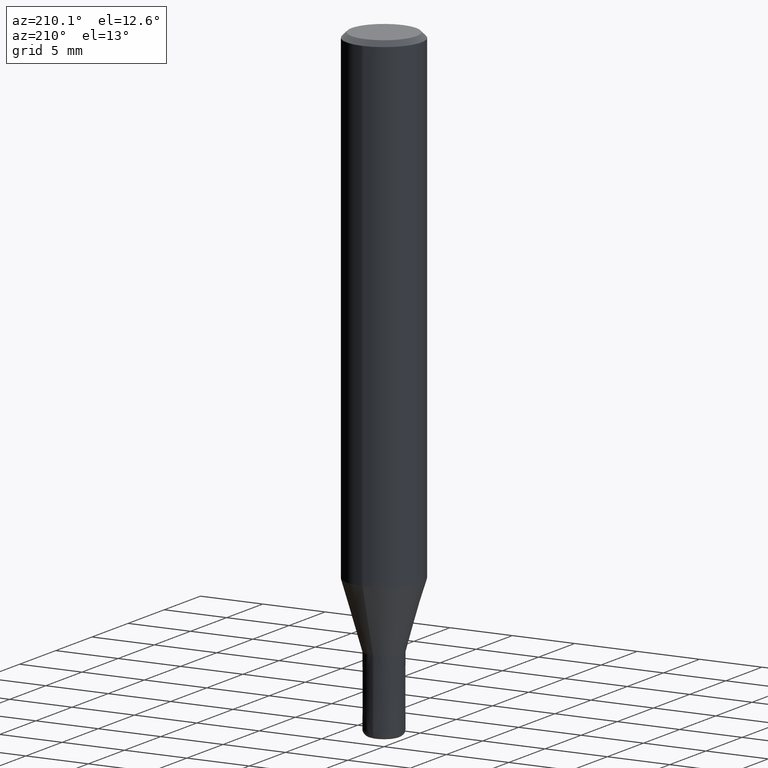
[diagram: clean part render]
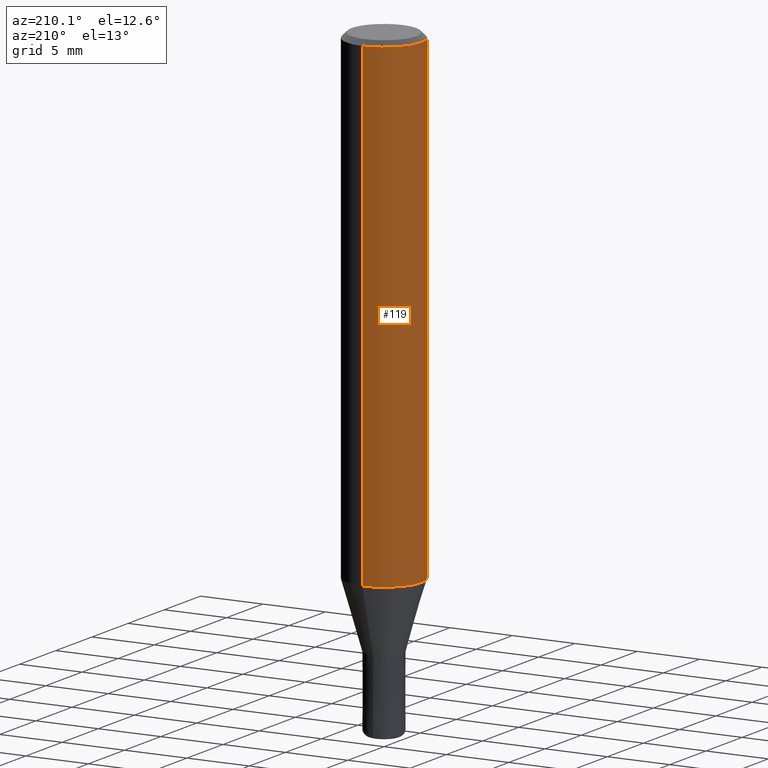
[diagram: same view with one face highlighted and labeled with its STEP entity id]
A machine part, auxiliary view. The second image highlights one B-rep face of the part: STEP entity #119.
In plain terms, the highlighted cylindrical surface (partial cylindrical patch) has radius 3 mm, axis along (-0, -0, 1).
Its self-contained STEP definition (entity closure, byte-faithful):
#119=ADVANCED_FACE('',(#306),#307,.T.);
#157=EDGE_CURVE('',#191,#187,#350,.T.);
#171=VERTEX_POINT('',#367);
#185=VERTEX_POINT('',#383);
#187=VERTEX_POINT('',#385);
#191=VERTEX_POINT('',#391);
#253=EDGE_CURVE('',#191,#171,#464,.T.);
#273=EDGE_CURVE('',#171,#185,#484,.T.);
#277=EDGE_CURVE('',#185,#187,#488,.T.);
#306=FACE_OUTER_BOUND('',#510,.T.);
#307=CYLINDRICAL_SURFACE('',#511,3.0);
#350=CIRCLE('',#568,3.0);
#367=CARTESIAN_POINT('',(3.67381906146713E-016,-3.0,-0.399999999999999));
#383=CARTESIAN_POINT('',(0.0,3.0,-0.399999999999999));
#385=CARTESIAN_POINT('',(0.0,3.0,-38.769));
#391=CARTESIAN_POINT('',(3.67381906146713E-016,-3.0,-38.769));
#464=LINE('',#699,#700);
#484=CIRCLE('',#731,3.0);
#488=LINE('',#736,#737);
#510=EDGE_LOOP('',(#751,#752,#753,#754));
#511=AXIS2_PLACEMENT_3D('',#755,#756,#757);
#568=AXIS2_PLACEMENT_3D('',#817,#818,#819);
#699=CARTESIAN_POINT('',(3.67381906146713E-016,-3.0,-19.5845));
#700=VECTOR('',#969,1.0);
#731=AXIS2_PLACEMENT_3D('',#985,#986,#987);
#736=CARTESIAN_POINT('',(-3.67381906146713E-016,3.0,-19.5845));
#737=VECTOR('',#988,1.0);
#751=ORIENTED_EDGE('',*,*,#277,.T.);
#752=ORIENTED_EDGE('',*,*,#157,.F.);
#753=ORIENTED_EDGE('',*,*,#253,.T.);
#754=ORIENTED_EDGE('',*,*,#273,.T.);
#755=CARTESIAN_POINT('',(0.0,0.0,-19.5845));
#756=DIRECTION('',(-0.0,-0.0,1.0));
#757=DIRECTION('',(0.0,1.0,0.0));
#817=CARTESIAN_POINT('',(0.0,0.0,-38.769));
#818=DIRECTION('',(0.0,0.0,-1.0));
#819=DIRECTION('',(0.0,1.0,0.0));
#969=DIRECTION('',(-0.0,-0.0,1.0));
#985=CARTESIAN_POINT('',(0.0,0.0,-0.399999999999999));
#986=DIRECTION('',(0.0,0.0,-1.0));
#987=DIRECTION('',(0.0,1.0,0.0));
#988=DIRECTION('',(0.0,0.0,-1.0));